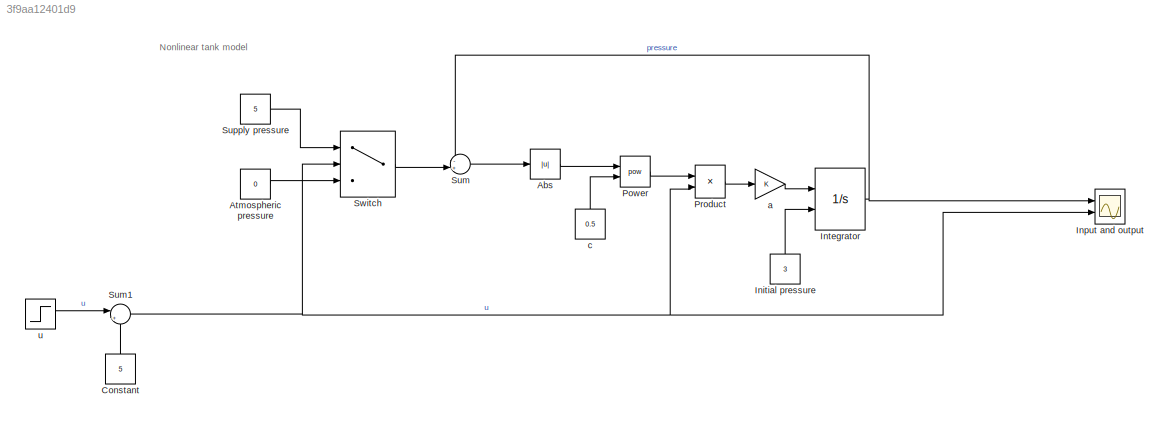
MODEL slx_3f9aa12401d9
KIND model
CONFIG AbsTol = auto
CONFIG EnableMultiTasking = off
CONFIG FixedStep = auto
CONFIG MaxStep = auto
CONFIG MinStep = auto
CONFIG RelTol = 1e-4
CONFIG SampleTimeConstraint = Unconstrained
CONFIG SolverName = ode15s
CONFIG StartTime = 0.0
CONFIG StopTime = 10
WORKSPACE source: MATLAB code (in-file)
WORKSPACE V = 0.4
WORKSPACE alpha = 1.5/3  (= 0.5)
WORKSPACE p_s = 6
BLOCK [Abs] Abs
  SaturateOnIntegerOverflow = off
BLOCK [Constant] Atmospheric pressure
  Value = 0
BLOCK [Constant] Constant
  NameLocation = right
  Value = 5
BLOCK [Constant] Initial pressure
  NameLocation = right
  OutDataTypeStr = Inherit: Inherit via back propagation
  Value = 3
BLOCK [Scope] Input and output
  Floating = off
  NumInputPorts = 2
  Ports = [2]
  ScopeSpecificationString = Simulink.scopes.TimeScopeBlockCfg('CurrentConfiguration', extmgr.ConfigurationSet(extmgr.Configuration('Core','General UI',true),extmgr.Configuration('Core','Source UI',true),extmgr.Configuration('Sources','WiredSimulink',true),extmgr.Configuration('Visuals','Time Domain',true,'SerializedDisplays',{struct('MinYLimReal','-1.75','MaxYLimReal','5.75','YLabelReal','','MinYLimMag','0.00000','MaxYLimMag...<+1463ch>
BLOCK [Integrator] Integrator
  InitialCondition = 1
  InitialConditionSource = external
  LimitOutput = on
  LowerSaturationLimit = 0
  Ports = [2, 1]
  UpperSaturationLimit = 5
BLOCK [Math] Power
  Operator = pow
  Ports = [2, 1]
BLOCK [Product] Product
  Ports = [2, 1]
BLOCK [Sum] Sum
  Inputs = -+|
  Ports = [2, 1]
BLOCK [Sum] Sum1
  Inputs = |+-
  Ports = [2, 1]
BLOCK [Constant] Supply pressure
  Value = 5
BLOCK [Switch] Switch
  Criteria = u2 > Threshold
  InputSameDT = off
  SaturateOnIntegerOverflow = off
BLOCK [Gain] a
BLOCK [Constant] c
  NameLocation = right
  Value = 0.5
BLOCK [Step] u
  After = 7
  Before = 4
  SampleTime = 0
  Time = 5
ANNOTATION (root): Nonlinear tank model
LINE Abs:1 -> Power:1
LINE Atmospheric pressure:1 -> Switch:3
LINE Constant:1 -> Sum1:2
LINE Initial pressure:1 -> Integrator:2
NET Integrator:1 -> Input and output:1, Sum:1
LINE Power:1 -> Product:1
LINE Product:1 -> a:1
NET Sum1:1 -> Input and output:2, Product:2, Switch:2
LINE Sum:1 -> Abs:1
LINE Supply pressure:1 -> Switch:1
LINE Switch:1 -> Sum:2
LINE a:1 -> Integrator:1
LINE c:1 -> Power:2
LINE u:1 -> Sum1:1
note: NET lines group one-source signal fan-out (src -> all destinations, sorted); 1:1 wires keep LINE
